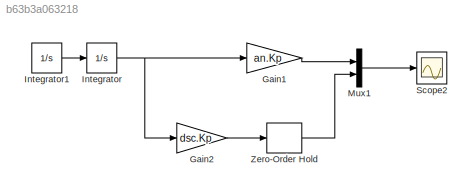
MODEL slx_b63b3a063218
KIND model
CONFIG AbsTol = auto
CONFIG EnableMultiTasking = off
CONFIG FixedStep = To/100
CONFIG MaxStep = auto
CONFIG MinStep = auto
CONFIG RelTol = 1e-3
CONFIG SampleTimeConstraint = Unconstrained
CONFIG SolverName = FixedStepAuto
CONFIG StartTime = 0.0
CONFIG StopTime = Tmdl
BLOCK [Gain] Gain1
  Gain = an.Kp
BLOCK [Gain] Gain2
  Gain = dsc.Kp
BLOCK [Integrator] Integrator
  Ports = [1, 1]
BLOCK [Integrator] Integrator1
  InitialCondition = 1
  Ports = [1, 1]
BLOCK [Mux] Mux1
  DisplayOption = bar
  Inputs = 2
  Ports = [2, 1]
BLOCK [Scope] Scope2
  Floating = off
  NumInputPorts = 1
  Ports = [1]
  ScopeSpecificationString = Simulink.scopes.TimeScopeBlockCfg('CurrentConfiguration', extmgr.ConfigurationSet(extmgr.Configuration('Core','General UI',true,'FigureColor',[1 1 1]),extmgr.Configuration('Core','Source UI',true),extmgr.Configuration('Sources','WiredSimulink',true,'DataLogging',true,'DataLoggingSaveFormat','Array','DataLoggingVariableName','y'),extmgr.Configuration('Visuals','Time Domain',true,'SerializedDisplays...<+1621ch>
BLOCK [ZeroOrderHold] Zero-Order Hold
  SampleTime = To
LINE Gain1:1 -> Mux1:1
LINE Gain2:1 -> Zero-Order Hold:1
LINE Integrator1:1 -> Integrator:1
NET Integrator:1 -> Gain1:1, Gain2:1
LINE Mux1:1 -> Scope2:1
LINE Zero-Order Hold:1 -> Mux1:2
note: NET lines group one-source signal fan-out (src -> all destinations, sorted); 1:1 wires keep LINE
